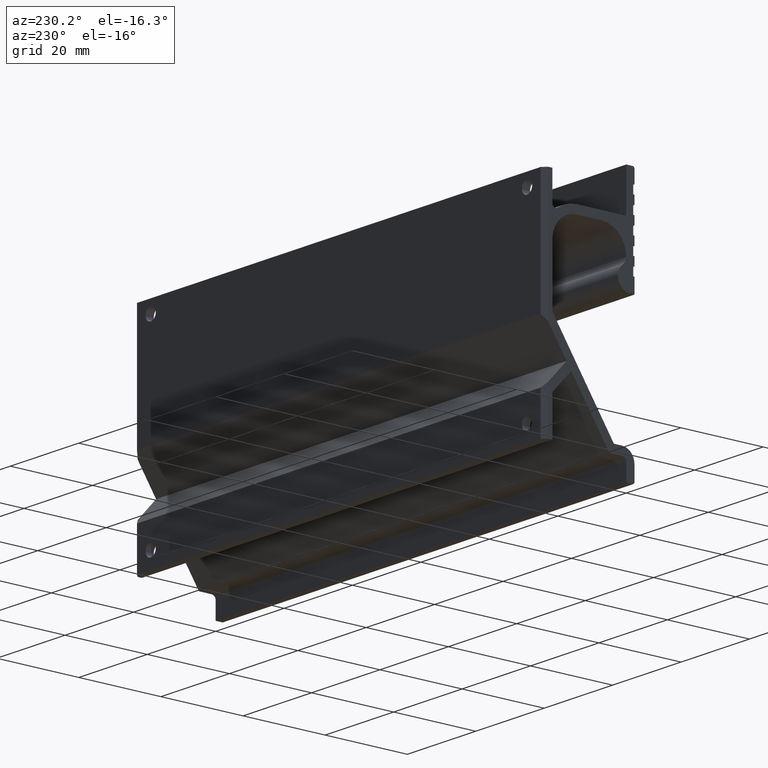
[diagram: clean part render]
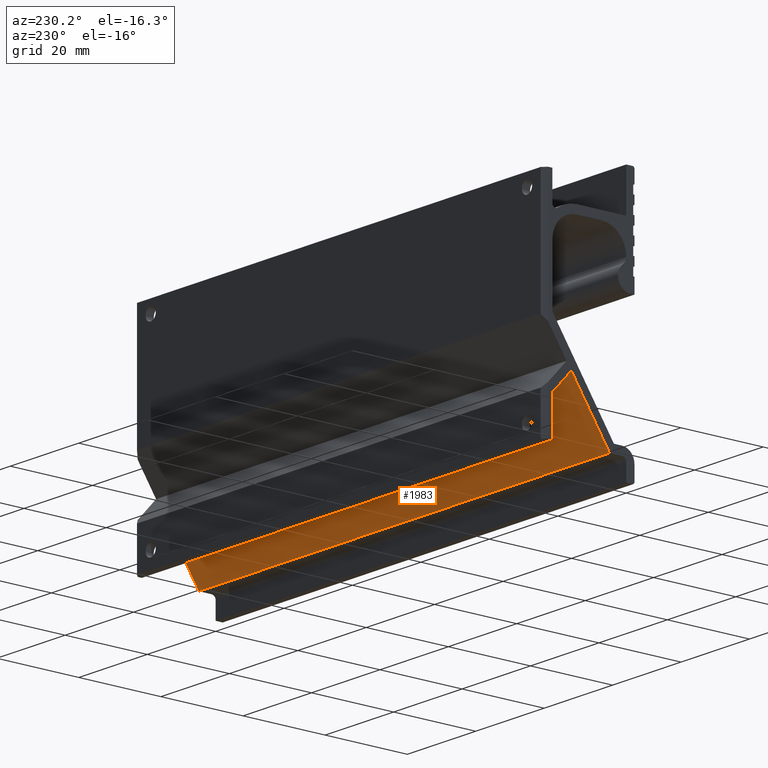
[diagram: same view with one face highlighted and labeled with its STEP entity id]
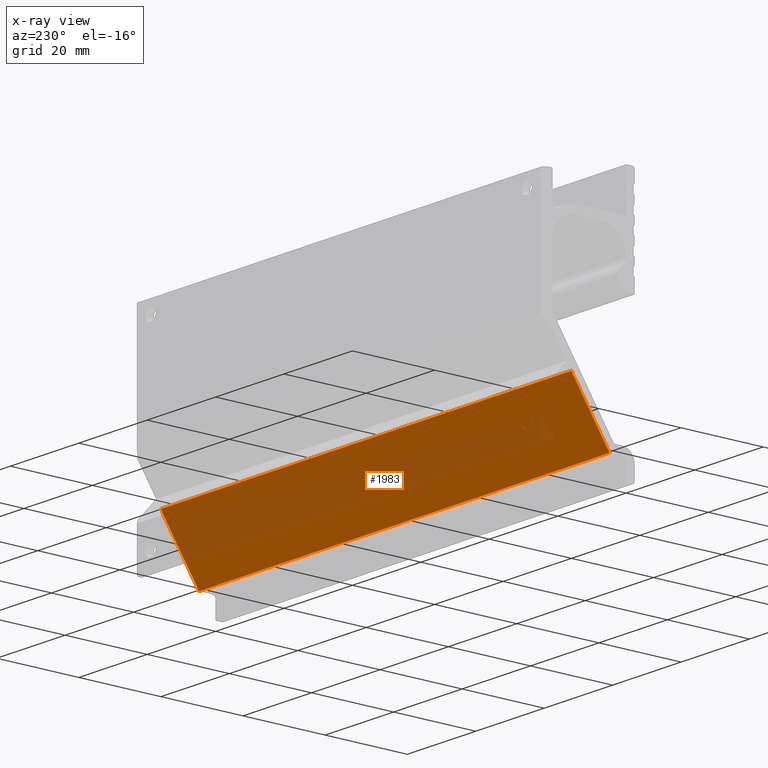
[diagram: x-ray of the same camera — body ghosted, the highlighted face saturated]
A machine part, auxiliary view. The second image highlights one B-rep face of the part: STEP entity #1983.
The next image is the same camera in x-ray: the body ghosted, the highlighted face saturated — about 35% of this face is hidden behind the body in this view.
In plain terms, the highlighted face is a freeform B-spline surface patch.
Its self-contained STEP definition (entity closure, byte-faithful):
#1305=CARTESIAN_POINT('',(60.0,4.083395999999909,5.0));
#1306=VERTEX_POINT('',#1305);
#1312=CARTESIAN_POINT('',(60.0,13.389838000000100,19.269876000000000));
#1313=VERTEX_POINT('',#1312);
#1314=CARTESIAN_POINT('',(60.0,4.083395999999909,5.0));
#1315=CARTESIAN_POINT('',(60.0,13.389838000000100,19.269876000000000));
#1316=QUASI_UNIFORM_CURVE('',1,(#1314,#1315),.UNSPECIFIED.,.F.,.U.);
#1317=EDGE_CURVE('',#1306,#1313,#1316,.T.);
#1374=CARTESIAN_POINT('',(-60.0,13.389838000000100,19.269876000000000));
#1375=VERTEX_POINT('',#1374);
#1381=CARTESIAN_POINT('',(-60.0,4.083395999999909,5.0));
#1382=VERTEX_POINT('',#1381);
#1383=CARTESIAN_POINT('',(-60.0,4.083395999999909,5.0));
#1384=CARTESIAN_POINT('',(-60.0,13.389838000000100,19.269876000000000));
#1385=QUASI_UNIFORM_CURVE('',1,(#1383,#1384),.UNSPECIFIED.,.F.,.U.);
#1386=EDGE_CURVE('',#1382,#1375,#1385,.T.);
#1954=CARTESIAN_POINT('',(-60.0,13.389838000000100,19.269876000000000));
#1955=CARTESIAN_POINT('',(60.0,13.389838000000100,19.269876000000000));
#1956=QUASI_UNIFORM_CURVE('',1,(#1954,#1955),.UNSPECIFIED.,.F.,.U.);
#1957=EDGE_CURVE('',#1375,#1313,#1956,.T.);
#1968=CARTESIAN_POINT('',(-65.993999767416710,3.618539240137591,4.287219721457788));
#1969=CARTESIAN_POINT('',(-65.993999767416710,13.854695009480659,19.982656661290111));
#1970=CARTESIAN_POINT('',(65.994002986067542,3.618539240137591,4.287219721457788));
#1971=CARTESIAN_POINT('',(65.994002986067542,13.854695009480659,19.982656661290111));
#1972=B_SPLINE_SURFACE_WITH_KNOTS('',1,1,((#1968,#1970),(#1969,#1971)),.UNSPECIFIED.,.F.,.F.,.U.,(2,2),(2,2),(0.0,18.738346396267421),(0.0,131.988002753484210),.UNSPECIFIED.);
#1973=ORIENTED_EDGE('',*,*,#1317,.F.);
#1974=CARTESIAN_POINT('',(-60.0,4.083395999999909,5.0));
#1975=CARTESIAN_POINT('',(60.0,4.083395999999909,5.0));
#1976=QUASI_UNIFORM_CURVE('',1,(#1974,#1975),.UNSPECIFIED.,.F.,.U.);
#1977=EDGE_CURVE('',#1382,#1306,#1976,.T.);
#1978=ORIENTED_EDGE('',*,*,#1977,.F.);
#1979=ORIENTED_EDGE('',*,*,#1386,.T.);
#1980=ORIENTED_EDGE('',*,*,#1957,.T.);
#1981=EDGE_LOOP('',(#1973,#1978,#1979,#1980));
#1982=FACE_OUTER_BOUND('',#1981,.T.);
#1983=ADVANCED_FACE('',(#1982),#1972,.T.);